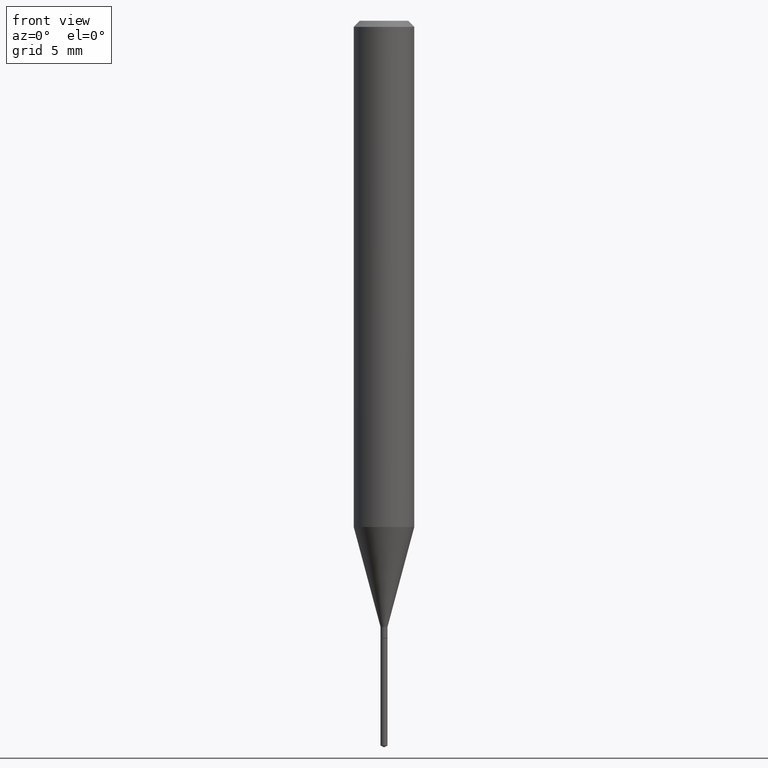
[diagram: clean part render]
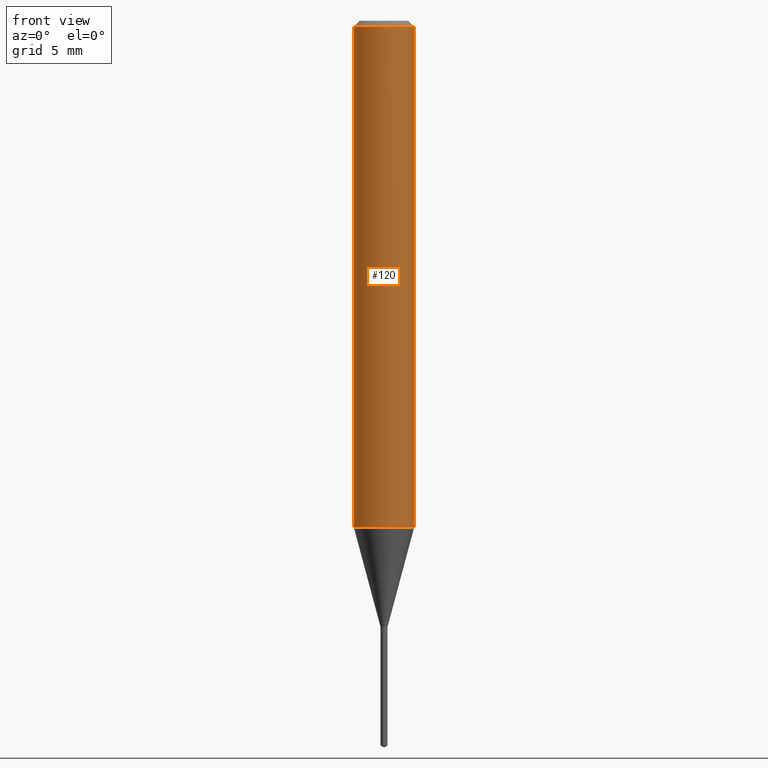
[diagram: same view with one face highlighted and labeled with its STEP entity id]
A machine part, front view. The second image highlights one B-rep face of the part: STEP entity #120.
In plain terms, the highlighted cylindrical surface (edge-blend (fillet) strip) has radius 1.5875 mm, axis along (-0, 0, 1).
Its self-contained STEP definition (entity closure, byte-faithful):
#17 = VECTOR ( 'NONE', #215, 39.37007874015748143 ) ;
#22 = CARTESIAN_POINT ( 'NONE',  ( 0.06250000000000006939, -4.364351673553921624E-16, 3.047610484872463374E-30 ) ) ;
#27 = CARTESIAN_POINT ( 'NONE',  ( 0.06250000000000013878, -4.085746102082878052E-15, -1.045204192881819649 ) ) ;
#43 = EDGE_CURVE ( 'NONE', #313, #475, #351, .T. ) ;
#52 = CARTESIAN_POINT ( 'NONE',  ( 0.000000000000000000, 0.000000000000000000, 0.000000000000000000 ) ) ;
#62 = ORIENTED_EDGE ( 'NONE', *, *, #43, .T. ) ;
#87 = DIRECTION ( 'NONE',  ( 1.000000000000000000, -6.982962677686262766E-15, 0.000000000000000000 ) ) ;
#102 = ORIENTED_EDGE ( 'NONE', *, *, #238, .F. ) ;
#107 = LINE ( 'NONE', #22, #462 ) ;
#120 = ADVANCED_FACE ( 'NONE', ( #331 ), #400, .T. ) ;
#139 = EDGE_LOOP ( 'NONE', ( #102, #62, #370, #457 ) ) ;
#181 = DIRECTION ( 'NONE',  ( -2.445468806185136597E-29, 3.491481338843145583E-15, 1.000000000000000000 ) ) ;
#209 = DIRECTION ( 'NONE',  ( -2.445468806185136597E-29, 3.491481338843145583E-15, 1.000000000000000000 ) ) ;
#215 = DIRECTION ( 'NONE',  ( -2.445468806185136877E-29, 3.491481338843145188E-15, 1.000000000000000000 ) ) ;
#234 = CARTESIAN_POINT ( 'NONE',  ( 2.556014249786402796E-29, -3.649310934727484805E-15, -1.045204192881819649 ) ) ;
#238 = EDGE_CURVE ( 'NONE', #313, #324, #301, .T. ) ;
#277 = CARTESIAN_POINT ( 'NONE',  ( -0.06250000000000013878, -3.205221724877421794E-15, -1.045204192881819649 ) ) ;
#285 = DIRECTION ( 'NONE',  ( 1.000000000000000000, -6.982962677686266711E-15, 4.876176775795935793E-29 ) ) ;
#295 = CARTESIAN_POINT ( 'NONE',  ( -0.06250000000000000000, -1.402388015881448581E-15, -0.01250000000000008396 ) ) ;
#301 = LINE ( 'NONE', #346, #17 ) ;
#313 = VERTEX_POINT ( 'NONE', #277 ) ;
#324 = VERTEX_POINT ( 'NONE', #295 ) ;
#325 = AXIS2_PLACEMENT_3D ( 'NONE', #347, #181, #340 ) ;
#331 = FACE_OUTER_BOUND ( 'NONE', #139, .T. ) ;
#336 = DIRECTION ( 'NONE',  ( -2.445468806185136877E-29, 3.491481338843145188E-15, 1.000000000000000000 ) ) ;
#340 = DIRECTION ( 'NONE',  ( 1.000000000000000000, -6.982962677686266711E-15, 0.000000000000000000 ) ) ;
#346 = CARTESIAN_POINT ( 'NONE',  ( -0.06250000000000006939, 4.440892098500631092E-16, -3.074334431409319267E-30 ) ) ;
#347 = CARTESIAN_POINT ( 'NONE',  ( 3.056836007731441415E-31, -4.364351673553961684E-17, -0.01250000000000008396 ) ) ;
#351 = CIRCLE ( 'NONE', #469, 0.06250000000000013878 ) ;
#369 = VERTEX_POINT ( 'NONE', #412 ) ;
#370 = ORIENTED_EDGE ( 'NONE', *, *, #416, .T. ) ;
#375 = AXIS2_PLACEMENT_3D ( 'NONE', #52, #209, #285 ) ;
#388 = DIRECTION ( 'NONE',  ( -2.445468806185136597E-29, 3.491481338843145583E-15, 1.000000000000000000 ) ) ;
#400 = CYLINDRICAL_SURFACE ( 'NONE', #375, 0.06250000000000006939 ) ;
#412 = CARTESIAN_POINT ( 'NONE',  ( 0.06250000000000000000, -4.800786840909313294E-16, -0.01250000000000008396 ) ) ;
#415 = CIRCLE ( 'NONE', #325, 0.06250000000000000000 ) ;
#416 = EDGE_CURVE ( 'NONE', #475, #369, #107, .T. ) ;
#448 = EDGE_CURVE ( 'NONE', #324, #369, #415, .T. ) ;
#457 = ORIENTED_EDGE ( 'NONE', *, *, #448, .F. ) ;
#462 = VECTOR ( 'NONE', #336, 39.37007874015748143 ) ;
#469 = AXIS2_PLACEMENT_3D ( 'NONE', #234, #388, #87 ) ;
#475 = VERTEX_POINT ( 'NONE', #27 ) ;